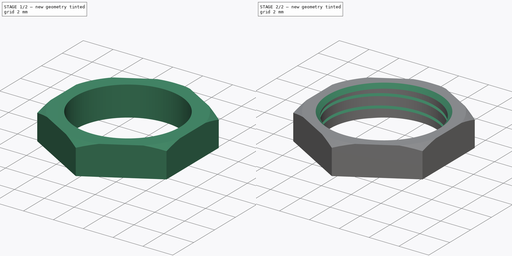
[diagram: build sequence overview — one tinted view per stage of 2, left to right]
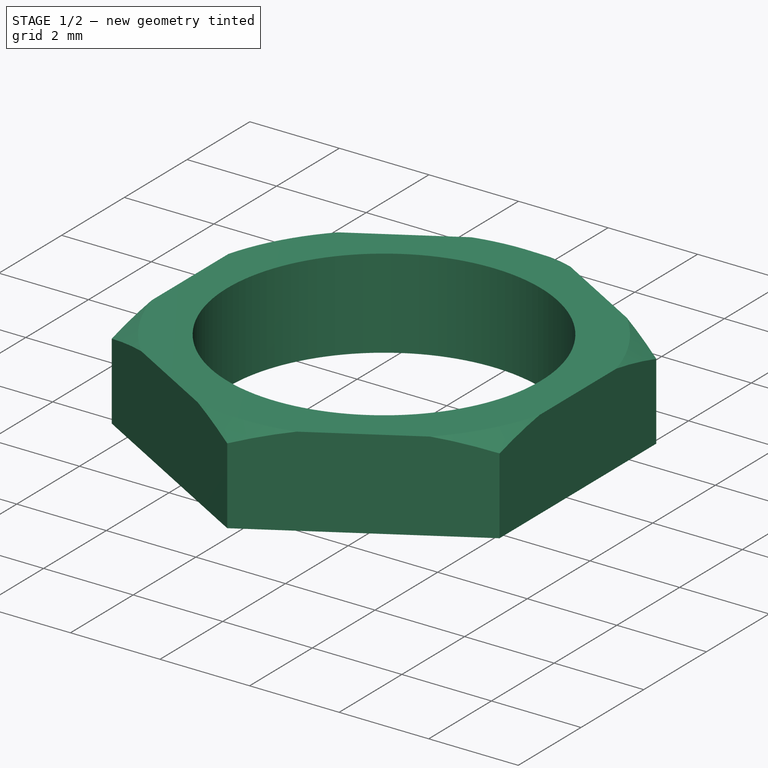
[diagram: stage 1 of 2 — iso view after this stage's code; geometry added in this stage tinted green]
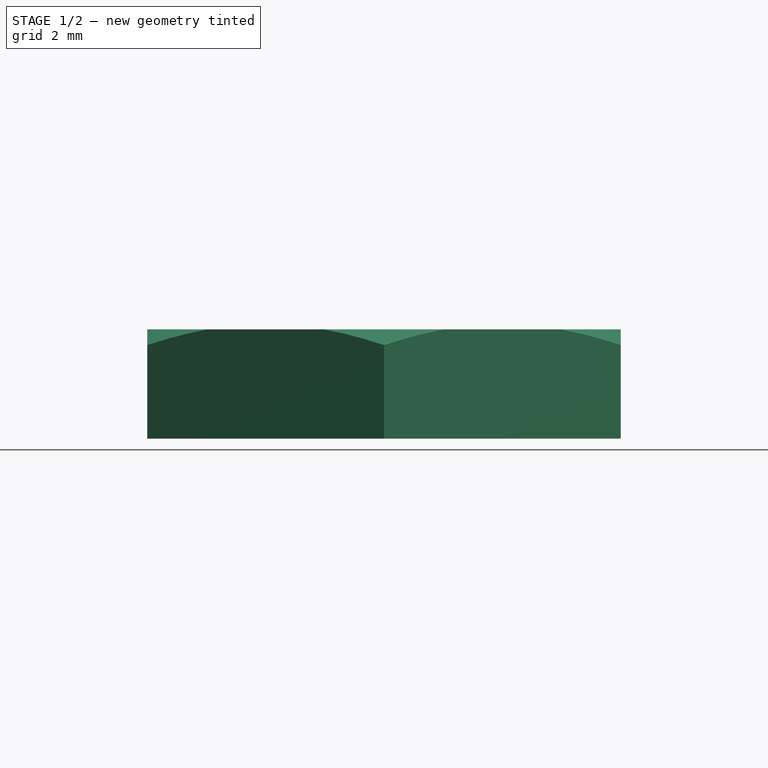
[diagram: stage 1 of 2 — front view after this stage's code; geometry added in this stage tinted green]
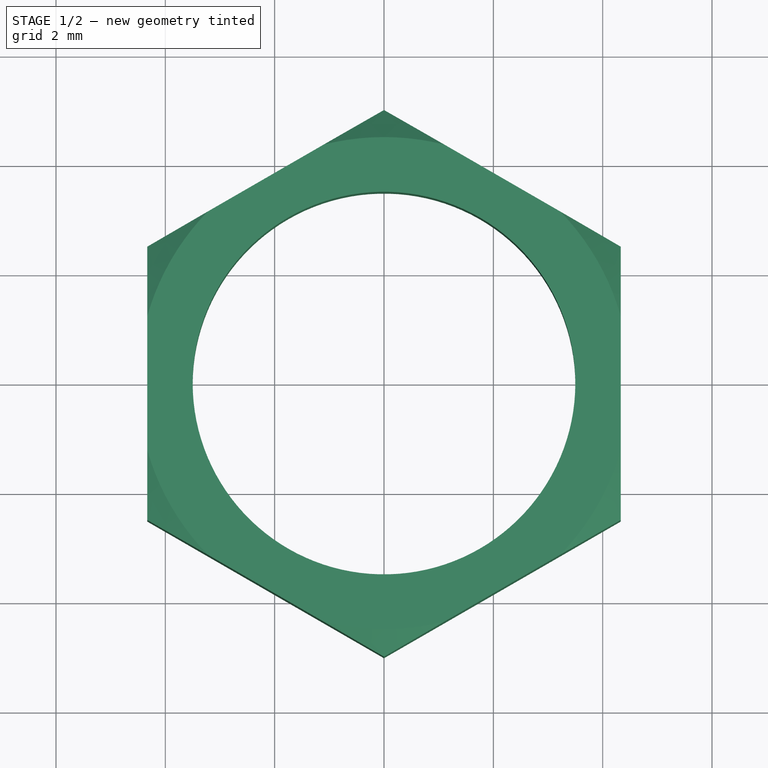
[diagram: stage 1 of 2 — top view after this stage's code; geometry added in this stage tinted green]
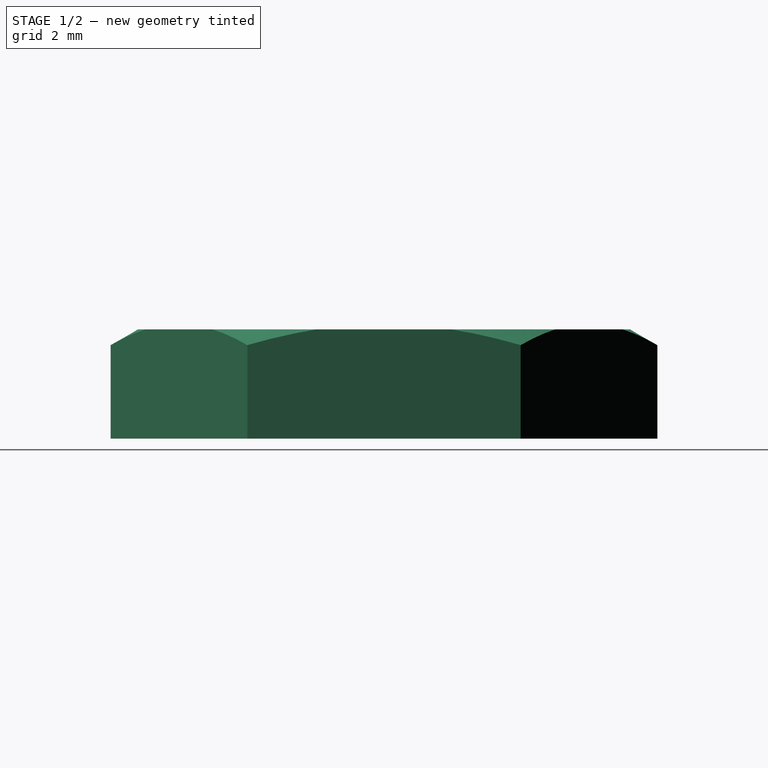
[diagram: stage 1 of 2 — right view after this stage's code; geometry added in this stage tinted green]
FCSTD DOCUMENT  (FreeCAD 0.19R16699 (Git))
Label: Nut_M7x0.75x2mm
License: All rights reserved
LicenseURL: http://en.wikipedia.org/wiki/All_rights_reserved
objects: Sketcher::SketchObject×3, PartDesign::Revolution×1, PartDesign::Pocket×1, Part::Helix×1, PartDesign::ShapeBinder×1, PartDesign::SubtractivePipe×1, PartDesign::Chamfer×1, PartDesign::Body×1
note: 13 computed .brp shape members not serialized (recipe doc carries the construction recipe); baked Part::Feature solids carry a one-line shape summary decoded from their .brp

FEATURE [Sketcher::SketchObject] Sketch
  MapMode = 5
  Placement = pos=(0,0,0) rot=(1,0,0;1.5708rad)
  Support = -> [XZ_Plane]
  sketch-geometry (5):
    g0: LineSegment StartX=-3.5 StartY=0 StartZ=0 EndX=-3.5 EndY=2 EndZ=0
    g1: LineSegment StartX=-3.5 StartY=2 StartZ=0 EndX=-4.5 EndY=2 EndZ=0
    g2: LineSegment StartX=-4.5 StartY=2 StartZ=0 EndX=-5 EndY=1.71132 EndZ=0
    g3: LineSegment StartX=-5 StartY=1.71132 StartZ=0 EndX=-5 EndY=0 EndZ=0
    g4: LineSegment StartX=-5 StartY=0 StartZ=0 EndX=-3.5 EndY=0 EndZ=0
  constraints (15):
    c: PointOnObject(g0,g-1)
    c: Vertical(g0)
    c: Coincident(g0,g1)
    c: Horizontal(g1)
    c: Coincident(g1,g2)
    c: Coincident(g2,g3)
    c: PointOnObject(g3,g-1)
    c: Vertical(g3)
    c: Coincident(g3,g4)
    c: Coincident(g4,g0)
    c: DistanceY(g0,g0) = 2
    c: DistanceX(g0,g-1) = 3.5
    c: Angle(g2,g1) = 2.61799
    c: DistanceX(g2,g-1) = 5
    c: DistanceX(g2,g1) = 0.5
FEATURE [PartDesign::Revolution] Revolution
  Angle = 360
  Axis = (0,2e-16,1)
  Base = (0,0,0)
  Placement = pos=(0,0,0) rot=(1,0,0;1.5708rad)
  Profile = -> Sketch
  ReferenceAxis = -> Sketch [V_Axis]
FEATURE [Sketcher::SketchObject] Sketch001
  AttachmentOffset = pos=(0,0,2) rot=(0,0,1;0rad)
  MapMode = 5
  Placement = pos=(0,0,2) rot=(0,0,1;0rad)
  Support = -> [XY_Plane]
  sketch-geometry (8):
    g0: LineSegment StartX=0 StartY=5 StartZ=0 EndX=-4.33013 EndY=2.5 EndZ=0
    g1: LineSegment StartX=-4.33013 StartY=2.5 StartZ=0 EndX=-4.33013 EndY=-2.5 EndZ=0
    g2: LineSegment StartX=-4.33013 StartY=-2.5 StartZ=0 EndX=6.2e-15 EndY=-5 EndZ=0
    g3: LineSegment StartX=6.2e-15 StartY=-5 StartZ=0 EndX=4.33013 EndY=-2.5 EndZ=0
    g4: LineSegment StartX=4.33013 StartY=-2.5 StartZ=0 EndX=4.33013 EndY=2.5 EndZ=0
    g5: LineSegment StartX=4.33013 StartY=2.5 StartZ=0 EndX=0 EndY=5 EndZ=0
    g6: Circle [constr] CenterX=0 CenterY=0 CenterZ=0 NormalX=0 NormalY=0 NormalZ=1 AngleXU=0 Radius=5
    g7: Circle CenterX=0 CenterY=0 CenterZ=0 NormalX=0 NormalY=0 NormalZ=1 AngleXU=0 Radius=5.59828
  constraints (17):
    c: Coincident(g0,g1)
    c: Coincident(g1,g2)
    c: Coincident(g2,g3)
    c: Coincident(g3,g4)
    c: Coincident(g4,g5)
    c: Coincident(g5,g0)
    c: Equal(g0, g1-g5) x5
    c: PointOnObject(g0,g6)
    c: PointOnObject(g1,g6)
    c: PointOnObject(g2,g6)
    c: PointOnObject(g3,g6)
    c: PointOnObject(g4,g6)
    c: PointOnObject(g5,g6)
    c: Coincident(g6,g-1)
    c: PointOnObject(g5,g-2)
    c: DistanceY(g-1,g0) = 5
    c: Coincident(g7,g-1)
FEATURE [PartDesign::Pocket] Pocket
  BaseFeature = -> Revolution
  Length = 5
  Length2 = 100
  Placement = pos=(0,0,0) rot=(1,0,0;1.5708rad)
  Profile = -> Sketch001
  Type = 0
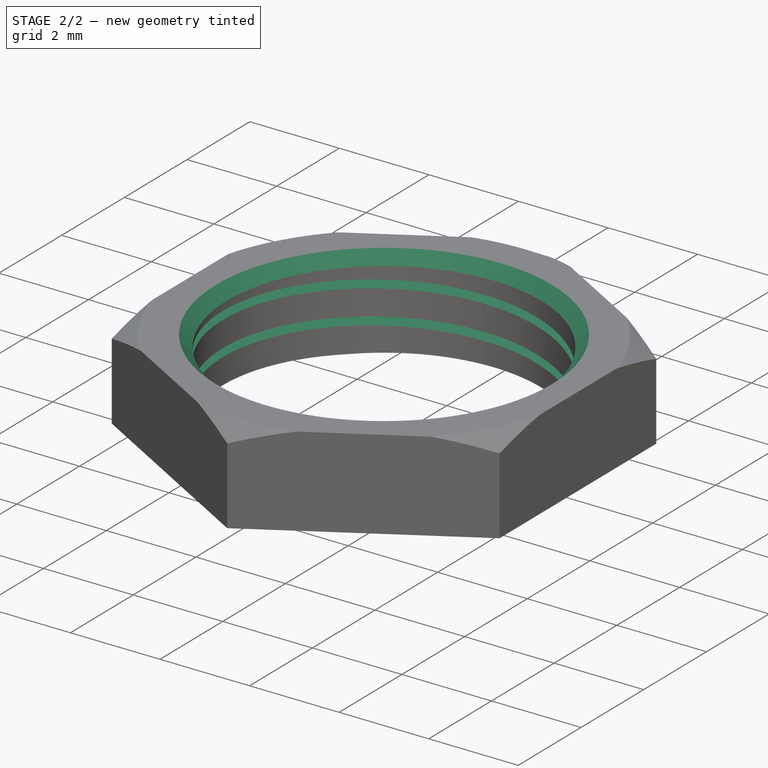
[diagram: stage 2 of 2 — iso view after this stage's code; geometry added in this stage tinted green]
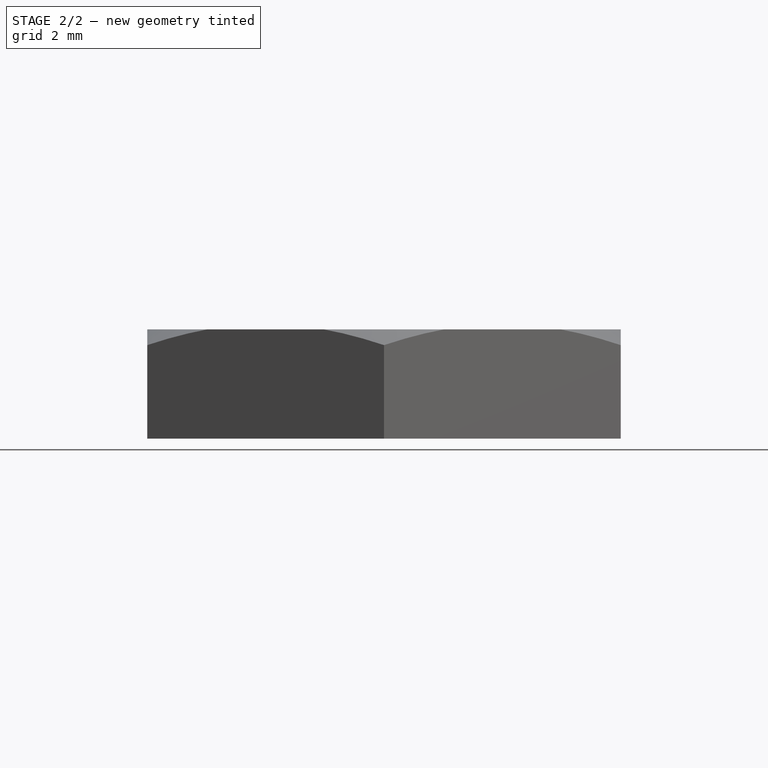
[diagram: stage 2 of 2 — front view after this stage's code; geometry added in this stage tinted green]
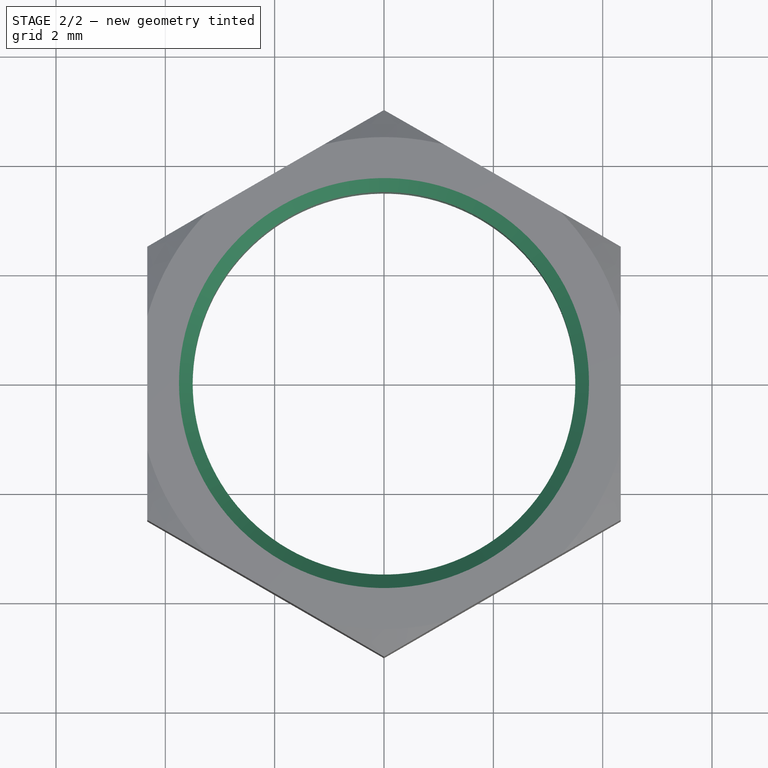
[diagram: stage 2 of 2 — top view after this stage's code; geometry added in this stage tinted green]
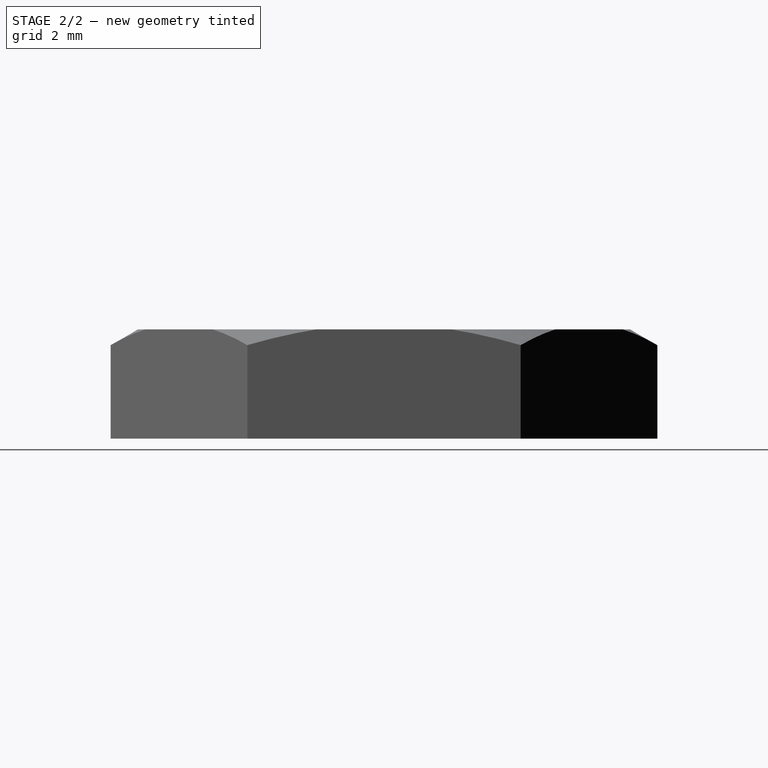
[diagram: stage 2 of 2 — right view after this stage's code; geometry added in this stage tinted green]
FEATURE [Part::Helix] Helix
  Angle = 0
  AttacherType = Attacher::AttachEngine3D
  Height = 2
  LocalCoord = 0
  Pitch = 0.75
  Radius = 3.5
  Style = 1
FEATURE [Sketcher::SketchObject] Sketch002
  MapMode = 5
  Placement = pos=(0,0,0) rot=(1,0,0;1.5708rad)
  Support = -> [XZ_Plane]
  sketch-geometry (4):
    g0: LineSegment StartX=-3.47634 StartY=0.09375 StartZ=0 EndX=-3.84813 EndY=0.046875 EndZ=0
    g1: LineSegment StartX=-3.84813 StartY=0.046875 StartZ=0 EndX=-3.84813 EndY=-0.046875 EndZ=0
    g2: LineSegment StartX=-3.84813 StartY=-0.046875 StartZ=0 EndX=-3.47634 EndY=-0.09375 EndZ=0
    g3: LineSegment StartX=-3.47634 StartY=-0.09375 StartZ=0 EndX=-3.47634 EndY=0.09375 EndZ=0
  constraints (8):
    c: Coincident(g0,g1)
    c: Coincident(g1,g2)
    c: Coincident(g2,g3)
    c: Coincident(g3,g0)
    c: DistanceY(g3,g3) = 0.1875
    c: Symmetric(g2,g0,g-1)
    c: Symmetric(g1,g0,g-1)
    c: DistanceY(g1,g1) = 0.09375
FEATURE [PartDesign::ShapeBinder] CopyHelix
  TraceSupport = false
FEATURE [PartDesign::SubtractivePipe] SubtractivePipe
  AuxilleryCurvelinear = true
  AuxillerySpineTangent = false
  BaseFeature = -> Pocket
  Binormal = (0,0,0)
  Mode = 2
  Placement = pos=(0,0,0) rot=(1,0,0;1.5708rad)
  Profile = -> Sketch002
  Spine = -> CopyHelix
  SpineTangent = false
  Transformation = 0
  Transition = 0
FEATURE [PartDesign::Chamfer] Chamfer
  Base = -> SubtractivePipe [Edge20]
  BaseFeature = -> SubtractivePipe
  Placement = pos=(0,0,0) rot=(1,0,0;1.5708rad)
  Size = 0.25
FEATURE [PartDesign::Body] Body
  Group = -> [Sketch,Revolution,Sketch001,Pocket,Sketch002,SubtractivePipe,CopyHelix,Chamfer]
  Origin = -> Origin
  Tip = -> Chamfer
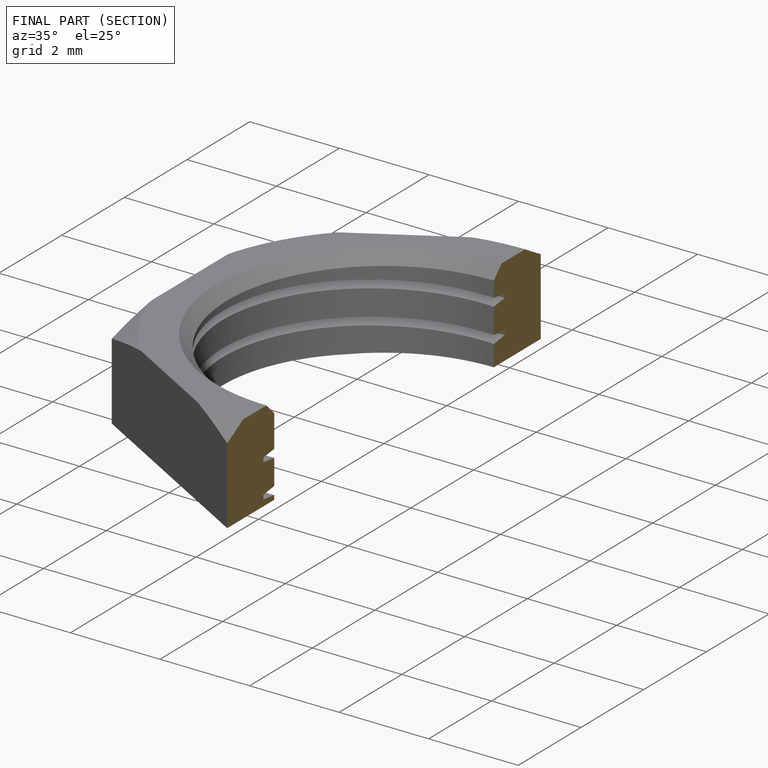
[diagram: finished part — half-section view (interior)]
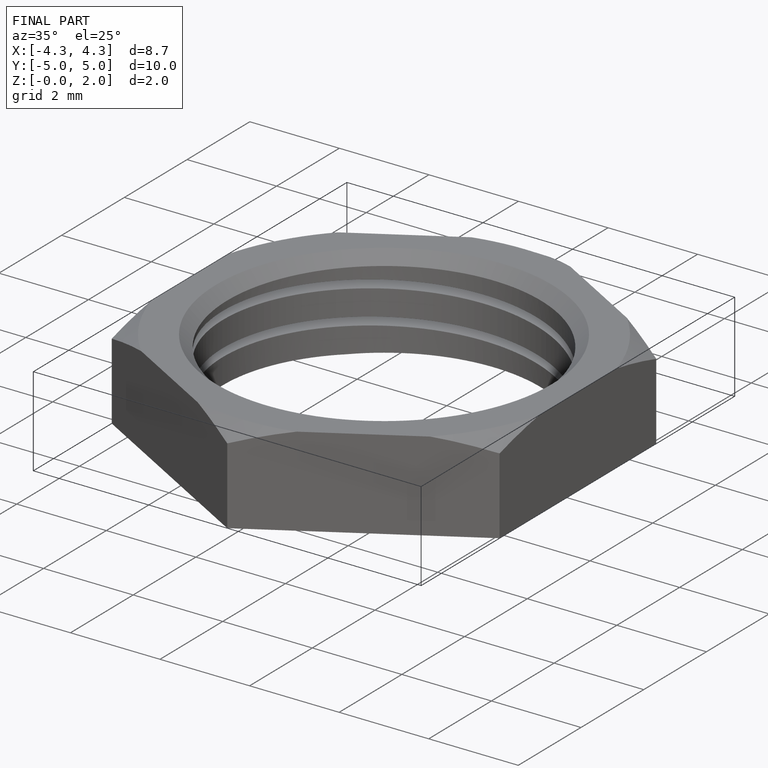
[diagram: finished part — iso view with bounding-box wireframe]
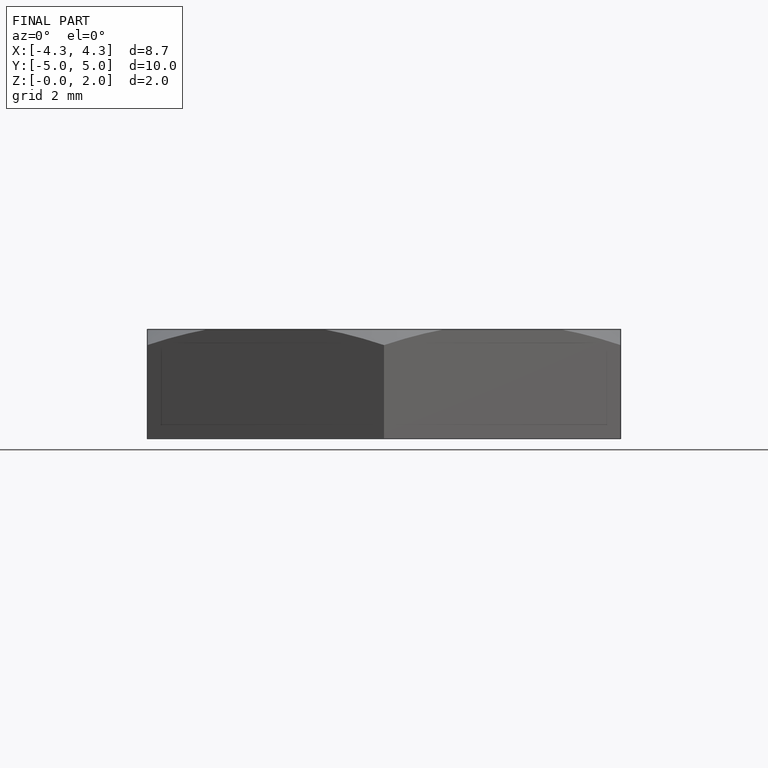
[diagram: finished part — front view with bounding-box wireframe]
